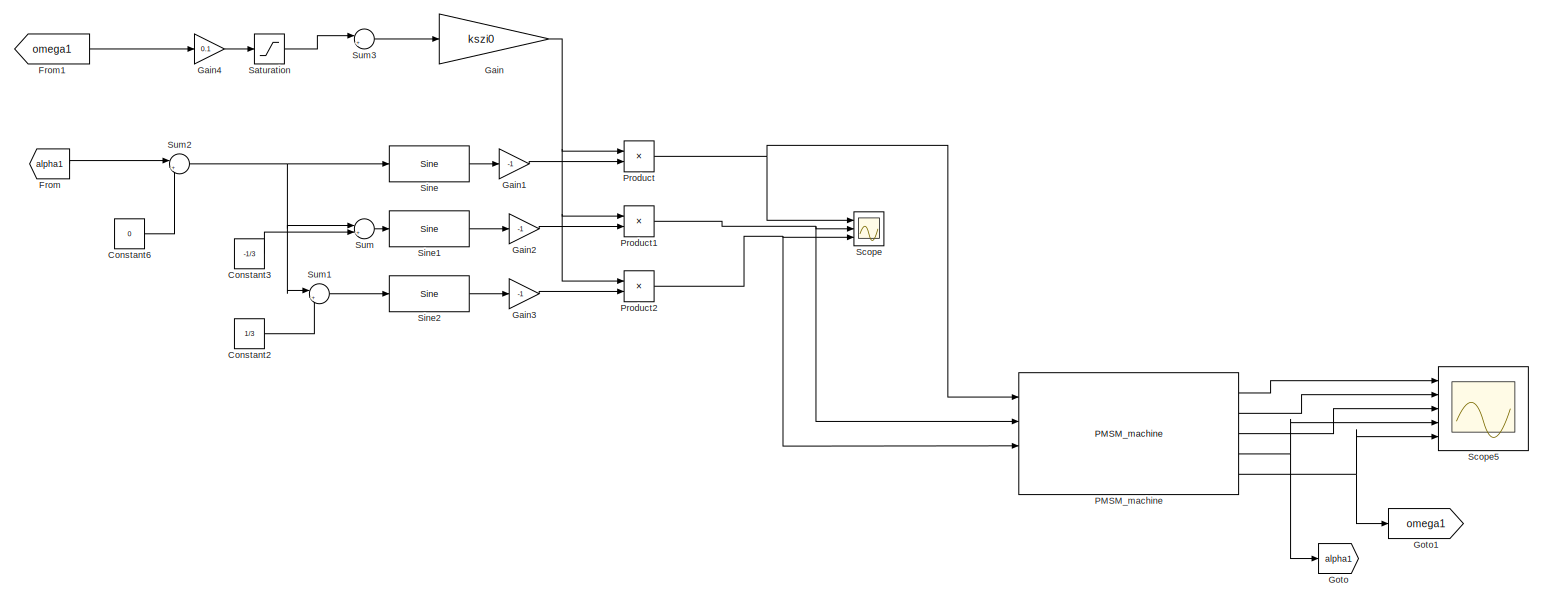
[diagram: root canvas - part 1/4, top center region]
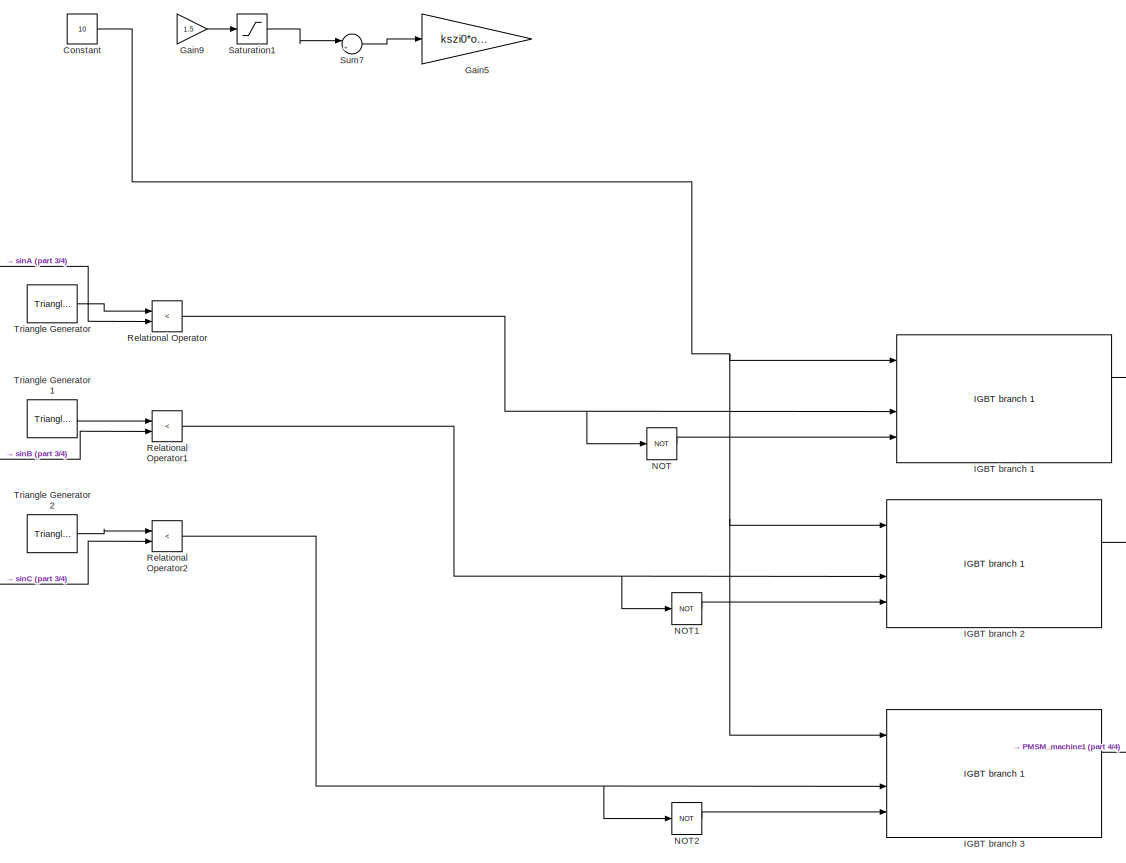
[diagram: root canvas - part 2/4, bottom center region]
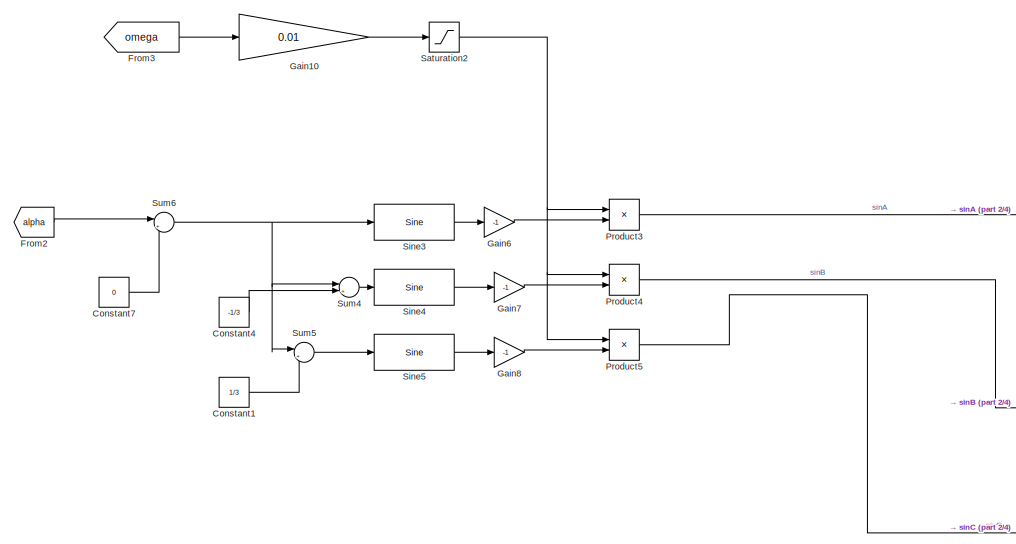
[diagram: root canvas - part 3/4, bottom left region]
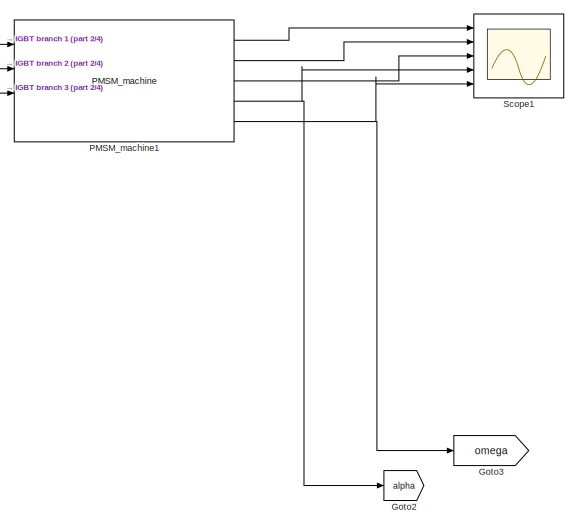
[diagram: root canvas - part 4/4, bottom right region]
MODEL slx_464cfdd20895
KIND model
CONFIG AbsTol = auto
CONFIG EnableMultiTasking = off
CONFIG FixedStep = auto
CONFIG MaxStep = 1e-4
CONFIG MinStep = auto
CONFIG RelTol = 1e-3
CONFIG SampleTimeConstraint = Unconstrained
CONFIG Solver = VariableStepAuto
CONFIG SolverName = VariableStepAuto
CONFIG StartTime = 0.0
CONFIG StopTime = 1
BLOCK [Constant] Constant
  Value = 10
BLOCK [Constant] Constant1
  Value = 1/3
BLOCK [Constant] Constant2
  Value = 1/3
BLOCK [Constant] Constant3
  Value = -1/3
BLOCK [Constant] Constant4
  Value = -1/3
BLOCK [Constant] Constant6
  Value = 0
BLOCK [Constant] Constant7
  Value = 0
BLOCK [From] From
  GotoTag = alpha1
BLOCK [From] From1
  GotoTag = omega1
BLOCK [From] From2
  GotoTag = alpha
BLOCK [From] From3
  GotoTag = omega
BLOCK [Gain] Gain
  Gain = kszi0
  OutDataTypeStr = Inherit: Inherit via internal rule
  ParamDataTypeStr = Inherit: Inherit via internal rule
  SaturateOnIntegerOverflow = off
BLOCK [Gain] Gain1
  Gain = -1
  OutDataTypeStr = Inherit: Inherit via internal rule
  ParamDataTypeStr = Inherit: Inherit via internal rule
  SaturateOnIntegerOverflow = off
BLOCK [Gain] Gain10
  Gain = 0.01
  OutDataTypeStr = Inherit: Inherit via internal rule
  ParamDataTypeStr = Inherit: Inherit via internal rule
  SaturateOnIntegerOverflow = off
BLOCK [Gain] Gain2
  Gain = -1
  OutDataTypeStr = Inherit: Inherit via internal rule
  ParamDataTypeStr = Inherit: Inherit via internal rule
  SaturateOnIntegerOverflow = off
BLOCK [Gain] Gain3
  Gain = -1
  OutDataTypeStr = Inherit: Inherit via internal rule
  ParamDataTypeStr = Inherit: Inherit via internal rule
  SaturateOnIntegerOverflow = off
BLOCK [Gain] Gain4
  Gain = 0.1
  OutDataTypeStr = Inherit: Inherit via internal rule
  ParamDataTypeStr = Inherit: Inherit via internal rule
  SaturateOnIntegerOverflow = off
BLOCK [Gain] Gain5
  Gain = kszi0*omega
  OutDataTypeStr = Inherit: Inherit via internal rule
  ParamDataTypeStr = Inherit: Inherit via internal rule
  SaturateOnIntegerOverflow = off
BLOCK [Gain] Gain6
  Gain = -1
  OutDataTypeStr = Inherit: Inherit via internal rule
  ParamDataTypeStr = Inherit: Inherit via internal rule
  SaturateOnIntegerOverflow = off
BLOCK [Gain] Gain7
  Gain = -1
  OutDataTypeStr = Inherit: Inherit via internal rule
  ParamDataTypeStr = Inherit: Inherit via internal rule
  SaturateOnIntegerOverflow = off
BLOCK [Gain] Gain8
  Gain = -1
  OutDataTypeStr = Inherit: Inherit via internal rule
  ParamDataTypeStr = Inherit: Inherit via internal rule
  SaturateOnIntegerOverflow = off
BLOCK [Gain] Gain9
  Gain = 1.5
  OutDataTypeStr = Inherit: Inherit via internal rule
  ParamDataTypeStr = Inherit: Inherit via internal rule
  SaturateOnIntegerOverflow = off
BLOCK [Goto] Goto
  GotoTag = alpha1
BLOCK [Goto] Goto1
  GotoTag = omega1
BLOCK [Goto] Goto2
  GotoTag = alpha
BLOCK [Goto] Goto3
  GotoTag = omega
BLOCK [Reference] IGBT branch 1  REF=PE_components/IGBT branch 1
  Ports = [4, 2]
  SourceBlock = PE_components/IGBT branch 1
  SourceType = SubSystem
BLOCK [Reference] IGBT branch 2  REF=PE_components/IGBT branch 1
  Ports = [4, 2]
  SourceBlock = PE_components/IGBT branch 1
  SourceType = SubSystem
BLOCK [Reference] IGBT branch 3  REF=PE_components/IGBT branch 1
  Ports = [4, 2]
  SourceBlock = PE_components/IGBT branch 1
  SourceType = SubSystem
BLOCK [Logic] NOT
  AllPortsSameDT = off
  IconShape = distinctive
  Operator = NOT
  OutDataTypeStr = boolean
  Ports = [1, 1]
BLOCK [Logic] NOT1
  AllPortsSameDT = off
  IconShape = distinctive
  Operator = NOT
  OutDataTypeStr = boolean
  Ports = [1, 1]
BLOCK [Logic] NOT2
  AllPortsSameDT = off
  IconShape = distinctive
  Operator = NOT
  OutDataTypeStr = boolean
  Ports = [1, 1]
BLOCK [Reference] PMSM_machine  REF=PE_components/PMSM_machine
  Ports = [4, 5]
  SourceBlock = PE_components/PMSM_machine
  SourceType = SubSystem
BLOCK [Reference] PMSM_machine1  REF=PE_components/PMSM_machine
  Ports = [4, 5]
  SourceBlock = PE_components/PMSM_machine
  SourceType = SubSystem
BLOCK [Product] Product
  InputSameDT = off
  OutDataTypeStr = Inherit: Inherit via internal rule
  Ports = [2, 1]
  RndMeth = Floor
  SaturateOnIntegerOverflow = off
BLOCK [Product] Product1
  InputSameDT = off
  OutDataTypeStr = Inherit: Inherit via internal rule
  Ports = [2, 1]
  RndMeth = Floor
  SaturateOnIntegerOverflow = off
BLOCK [Product] Product2
  InputSameDT = off
  OutDataTypeStr = Inherit: Inherit via internal rule
  Ports = [2, 1]
  RndMeth = Floor
  SaturateOnIntegerOverflow = off
BLOCK [Product] Product3
  InputSameDT = off
  OutDataTypeStr = Inherit: Inherit via internal rule
  Ports = [2, 1]
  RndMeth = Floor
  SaturateOnIntegerOverflow = off
BLOCK [Product] Product4
  InputSameDT = off
  OutDataTypeStr = Inherit: Inherit via internal rule
  Ports = [2, 1]
  RndMeth = Floor
  SaturateOnIntegerOverflow = off
BLOCK [Product] Product5
  InputSameDT = off
  OutDataTypeStr = Inherit: Inherit via internal rule
  Ports = [2, 1]
  RndMeth = Floor
  SaturateOnIntegerOverflow = off
BLOCK [RelationalOperator] Relational Operator
  InputSameDT = off
  Operator = <
  OutDataTypeStr = boolean
  Ports = [2, 1]
  RndMeth = Simplest
BLOCK [RelationalOperator] Relational Operator1
  InputSameDT = off
  Operator = <
  OutDataTypeStr = boolean
  Ports = [2, 1]
  RndMeth = Simplest
BLOCK [RelationalOperator] Relational Operator2
  InputSameDT = off
  Operator = <
  OutDataTypeStr = boolean
  Ports = [2, 1]
  RndMeth = Simplest
BLOCK [Saturate] Saturation
  InputPortMap = u0
  Ports = [1, 1]
  UpperLimit = 1
BLOCK [Saturate] Saturation1
  InputPortMap = u0
  Ports = [1, 1]
  UpperLimit = 1.5
BLOCK [Saturate] Saturation2
  InputPortMap = u0
  Ports = [1, 1]
  UpperLimit = 1
BLOCK [Scope] Scope
  Floating = off
  NumInputPorts = 3
  Ports = [3]
  ScopeSpecificationString = Simulink.scopes.TimeScopeBlockCfg('CurrentConfiguration', extmgr.ConfigurationSet(extmgr.Configuration('Core','General UI',true),extmgr.Configuration('Core','Source UI',true),extmgr.Configuration('Sources','WiredSimulink',true,'DataLoggingVariableName','ScopeData1'),extmgr.Configuration('Visuals','Time Domain',true,'SerializedDisplays',{struct('MinYLimReal','-0.64975','MaxYLimReal','0.64975','YLab...<+1507ch>
BLOCK [Scope] Scope1
  Floating = off
  NumInputPorts = 5
  Ports = [5]
  ScopeSpecificationString = Simulink.scopes.TimeScopeBlockCfg('CurrentConfiguration', extmgr.ConfigurationSet(extmgr.Configuration('Core','General UI',true),extmgr.Configuration('Core','Source UI',true),extmgr.Configuration('Sources','WiredSimulink',true),extmgr.Configuration('Visuals','Time Domain',true,'SerializedDisplays',{struct('MinYLimReal','-1038.32546','MaxYLimReal','1038.42285','YLabelReal','','MinYLimMag','  0.0000...<+1652ch>
BLOCK [Scope] Scope5
  Floating = off
  NumInputPorts = 5
  Ports = [5]
  ScopeSpecificationString = Simulink.scopes.TimeScopeBlockCfg('CurrentConfiguration', extmgr.ConfigurationSet(extmgr.Configuration('Core','General UI',true),extmgr.Configuration('Core','Source UI',true),extmgr.Configuration('Sources','WiredSimulink',true,'DataLoggingVariableName','ScopeData5'),extmgr.Configuration('Visuals','Time Domain',true,'SerializedDisplays',{struct('MinYLimReal','-1300.17281','MaxYLimReal','1299.43916'...<+2031ch>
BLOCK [Reference] Sine  REF=simulink/Lookup
Tables/Sine
  Ports = [1, 1]
  SourceBlock = simulink/Lookup\nTables/Sine
  SourceProductBaseCode = SL
  SourceProductName = Simulink
  SourceType = Sine and Cosine
BLOCK [Reference] Sine1  REF=simulink/Lookup
Tables/Sine
  Ports = [1, 1]
  SourceBlock = simulink/Lookup\nTables/Sine
  SourceProductBaseCode = SL
  SourceProductName = Simulink
  SourceType = Sine and Cosine
BLOCK [Reference] Sine2  REF=simulink/Lookup
Tables/Sine
  Ports = [1, 1]
  SourceBlock = simulink/Lookup\nTables/Sine
  SourceProductBaseCode = SL
  SourceProductName = Simulink
  SourceType = Sine and Cosine
BLOCK [Reference] Sine3  REF=simulink/Lookup
Tables/Sine
  Ports = [1, 1]
  SourceBlock = simulink/Lookup\nTables/Sine
  SourceProductBaseCode = SL
  SourceProductName = Simulink
  SourceType = Sine and Cosine
BLOCK [Reference] Sine4  REF=simulink/Lookup
Tables/Sine
  Ports = [1, 1]
  SourceBlock = simulink/Lookup\nTables/Sine
  SourceProductBaseCode = SL
  SourceProductName = Simulink
  SourceType = Sine and Cosine
BLOCK [Reference] Sine5  REF=simulink/Lookup
Tables/Sine
  Ports = [1, 1]
  SourceBlock = simulink/Lookup\nTables/Sine
  SourceProductBaseCode = SL
  SourceProductName = Simulink
  SourceType = Sine and Cosine
BLOCK [Sum] Sum
  IconShape = round
  InputSameDT = off
  Inputs = |++
  OutDataTypeStr = Inherit: Inherit via internal rule
  Ports = [2, 1]
  SaturateOnIntegerOverflow = off
BLOCK [Sum] Sum1
  IconShape = round
  InputSameDT = off
  Inputs = |++
  OutDataTypeStr = Inherit: Inherit via internal rule
  Ports = [2, 1]
  SaturateOnIntegerOverflow = off
BLOCK [Sum] Sum2
  IconShape = round
  InputSameDT = off
  Inputs = |++
  OutDataTypeStr = Inherit: Inherit via internal rule
  Ports = [2, 1]
  SaturateOnIntegerOverflow = off
BLOCK [Sum] Sum3
  IconShape = round
  InputSameDT = off
  Inputs = |++
  OutDataTypeStr = Inherit: Inherit via internal rule
  Ports = [2, 1]
  SaturateOnIntegerOverflow = off
BLOCK [Sum] Sum4
  IconShape = round
  InputSameDT = off
  Inputs = |++
  OutDataTypeStr = Inherit: Inherit via internal rule
  Ports = [2, 1]
  SaturateOnIntegerOverflow = off
BLOCK [Sum] Sum5
  IconShape = round
  InputSameDT = off
  Inputs = |++
  OutDataTypeStr = Inherit: Inherit via internal rule
  Ports = [2, 1]
  SaturateOnIntegerOverflow = off
BLOCK [Sum] Sum6
  IconShape = round
  InputSameDT = off
  Inputs = |++
  OutDataTypeStr = Inherit: Inherit via internal rule
  Ports = [2, 1]
  SaturateOnIntegerOverflow = off
BLOCK [Sum] Sum7
  IconShape = round
  InputSameDT = off
  Inputs = |++
  OutDataTypeStr = Inherit: Inherit via internal rule
  Ports = [2, 1]
  SaturateOnIntegerOverflow = off
BLOCK [Reference] Triangle Generator  REF=powerlib_meascontrol/Pulse & Signal
Generators/Triangle
Generator
  Ports = [0, 1]
  SourceBlock = powerlib_meascontrol/Pulse & Signal\nGenerators/Triangle\nGenerator
  SourceProductBaseCode = PS
  SourceProductName = Simscape Electrical
  SourceType = Triangle Generator
BLOCK [Reference] Triangle Generator1  REF=powerlib_meascontrol/Pulse & Signal
Generators/Triangle
Generator
  Ports = [0, 1]
  SourceBlock = powerlib_meascontrol/Pulse & Signal\nGenerators/Triangle\nGenerator
  SourceProductBaseCode = PS
  SourceProductName = Simscape Electrical
  SourceType = Triangle Generator
BLOCK [Reference] Triangle Generator2  REF=powerlib_meascontrol/Pulse & Signal
Generators/Triangle
Generator
  Ports = [0, 1]
  SourceBlock = powerlib_meascontrol/Pulse & Signal\nGenerators/Triangle\nGenerator
  SourceProductBaseCode = PS
  SourceProductName = Simscape Electrical
  SourceType = Triangle Generator
LINE Constant1:1 -> Sum5:2
LINE Constant2:1 -> Sum1:2
LINE Constant3:1 -> Sum:2
LINE Constant4:1 -> Sum4:2
LINE Constant6:1 -> Sum2:2
LINE Constant7:1 -> Sum6:2
NET Constant:1 -> IGBT branch 1:1, IGBT branch 2:1, IGBT branch 3:1
LINE From1:1 -> Gain4:1
LINE From2:1 -> Sum6:1
LINE From3:1 -> Gain10:1
LINE From:1 -> Sum2:1
LINE Gain10:1 -> Saturation2:1
LINE Gain1:1 -> Product:2
LINE Gain2:1 -> Product1:2
LINE Gain3:1 -> Product2:2
LINE Gain4:1 -> Saturation:1
LINE Gain6:1 -> Product3:2
LINE Gain7:1 -> Product4:2
LINE Gain8:1 -> Product5:2
LINE Gain9:1 -> Saturation1:1
NET Gain:1 -> Product1:1, Product2:1, Product:1
LINE IGBT branch 1:1 -> PMSM_machine1:1
LINE IGBT branch 2:1 -> PMSM_machine1:2
LINE IGBT branch 3:1 -> PMSM_machine1:3
LINE NOT1:1 -> IGBT branch 2:4
LINE NOT2:1 -> IGBT branch 3:4
LINE NOT:1 -> IGBT branch 1:4
LINE PMSM_machine1:1 -> Scope1:1
LINE PMSM_machine1:2 -> Scope1:2
LINE PMSM_machine1:3 -> Scope1:3
NET PMSM_machine1:4 -> Goto2:1, Scope1:4
NET PMSM_machine1:5 -> Goto3:1, Scope1:5
LINE PMSM_machine:1 -> Scope5:1
LINE PMSM_machine:2 -> Scope5:2
LINE PMSM_machine:3 -> Scope5:3
NET PMSM_machine:4 -> Goto:1, Scope5:4
NET PMSM_machine:5 -> Goto1:1, Scope5:5
NET Product1:1 -> PMSM_machine:2, Scope:2
NET Product2:1 -> PMSM_machine:3, Scope:3
LINE Product3:1 -> Relational Operator:2
LINE Product4:1 -> Relational Operator1:2
LINE Product5:1 -> Relational Operator2:2
NET Product:1 -> PMSM_machine:1, Scope:1
NET Relational Operator1:1 -> IGBT branch 2:3, NOT1:1
NET Relational Operator2:1 -> IGBT branch 3:3, NOT2:1
NET Relational Operator:1 -> IGBT branch 1:3, NOT:1
LINE Saturation1:1 -> Sum7:1
NET Saturation2:1 -> Product3:1, Product4:1, Product5:1
LINE Saturation:1 -> Sum3:1
LINE Sine1:1 -> Gain2:1
LINE Sine2:1 -> Gain3:1
LINE Sine3:1 -> Gain6:1
LINE Sine4:1 -> Gain7:1
LINE Sine5:1 -> Gain8:1
LINE Sine:1 -> Gain1:1
LINE Sum1:1 -> Sine2:1
NET Sum2:1 -> Sine:1, Sum1:1, Sum:1
LINE Sum3:1 -> Gain:1
LINE Sum4:1 -> Sine4:1
LINE Sum5:1 -> Sine5:1
NET Sum6:1 -> Sine3:1, Sum4:1, Sum5:1
LINE Sum7:1 -> Gain5:1
LINE Sum:1 -> Sine1:1
LINE Triangle Generator1:1 -> Relational Operator1:1
LINE Triangle Generator2:1 -> Relational Operator2:1
LINE Triangle Generator:1 -> Relational Operator:1
note: NET lines group one-source signal fan-out (src -> all destinations, sorted); 1:1 wires keep LINE
